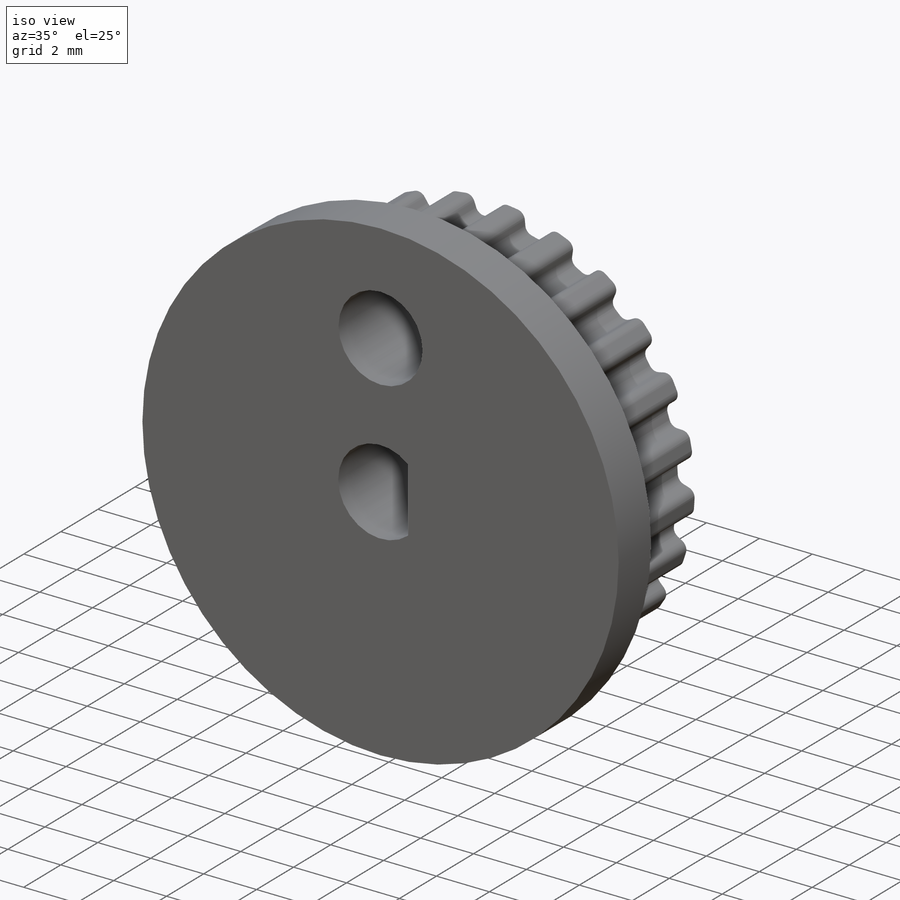
[diagram: iso view]
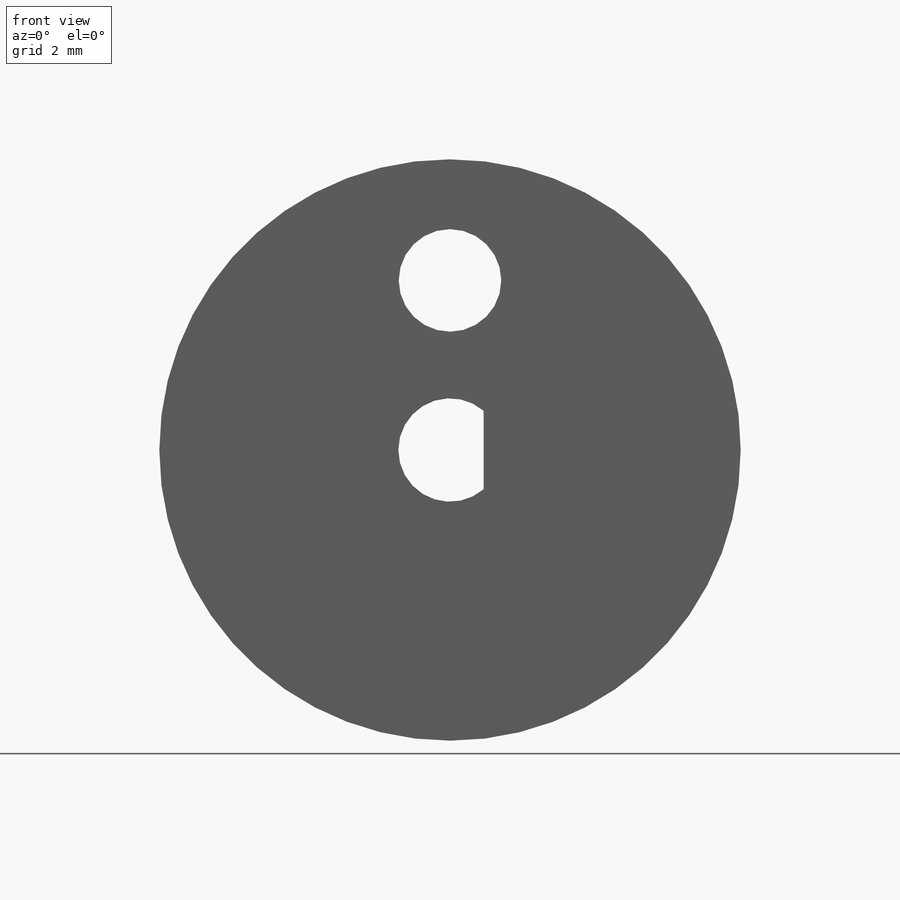
[diagram: front view]
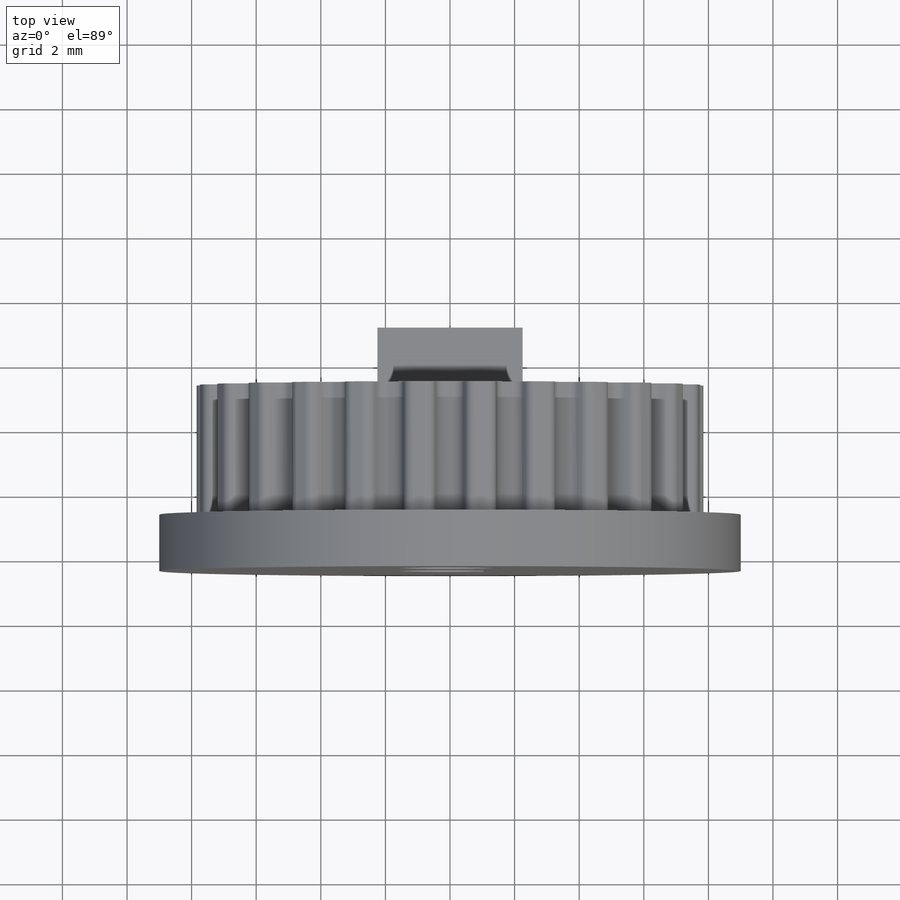
[diagram: top view]
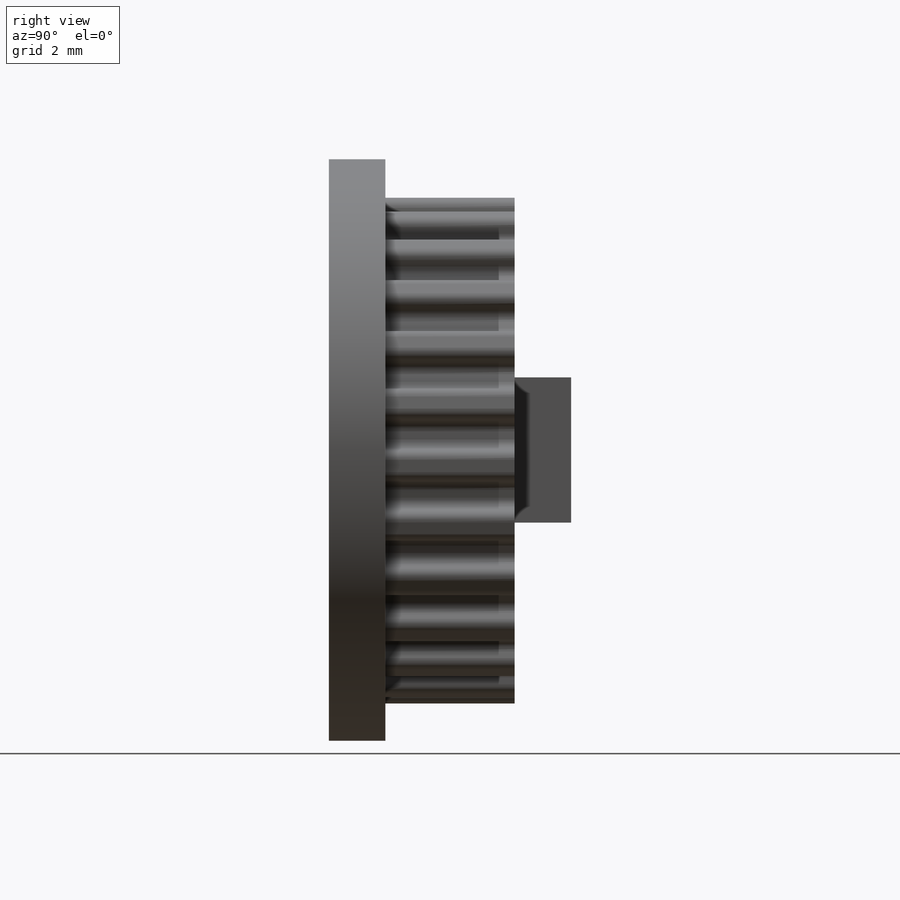
[diagram: right view]
SOLIDWORKS PART (.sldprt)
format: sldprt  version: not decoded by parser v0  size: 497,664 bytes
history: native  units: mm
features: sketch x5, extrude x3, cut_extrude x2, material x1, plane x1 (+16 scaffold rows collapsed)
feature tree (28):
  scaffold x16  (default folders/planes/origin — collapsed)
  material  "Material <not specified>"
  plane  "Plane1"
  sketch  "Sketch1"  dims[D1=~1.041611mm]
  extrude  "Boss-Extrude1"  Depth=4mm
  sketch  "Sketch2"  dims[D1=~1.041611mm]
  extrude  "Boss-Extrude2"  Depth=1.75mm
  sketch  "Sketch3"
  sketch  "Sketch4"  dims[D1=4.5mm D2=4.5mm]
  extrude  "Boss-Extrude3"  Depth=1.75mm
  cut_extrude  "Cut-Extrude2"  [1 undecoded]
  sketch  "Sketch5"  dims[D1=~1.789929mm]
  cut_extrude  "Cut-Extrude3"  [1 undecoded]
decode coverage: 7 of 10 modeling features carry decoded parameters
note: ~ marks probable driven/reference dimensions
note: 2 parameter values undecoded
note: suppression state not decoded; provenance and decode notes live in map.json
